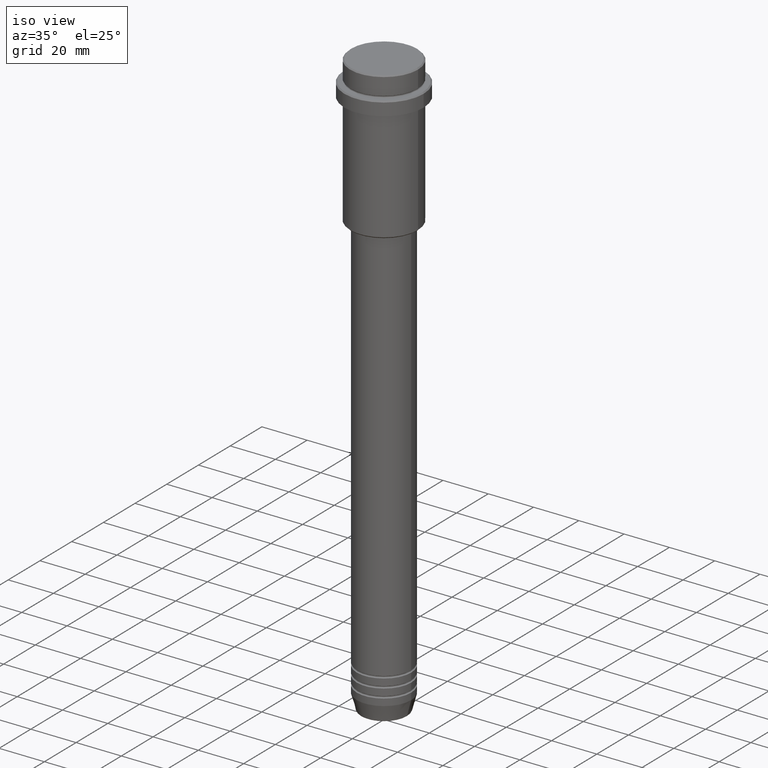
[diagram: clean part render]
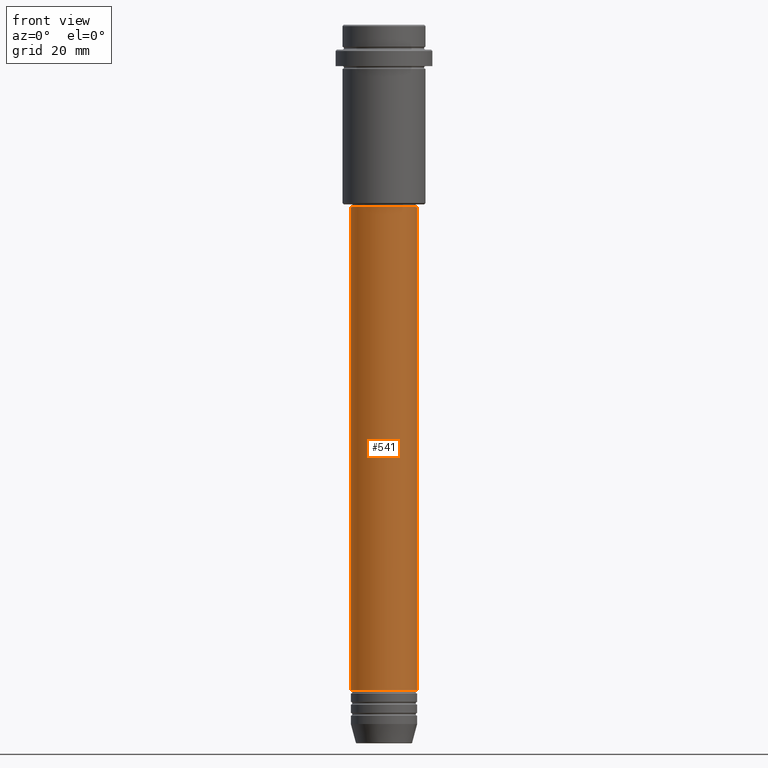
[diagram: tour spotlight — one face highlighted and labeled with its STEP entity id]
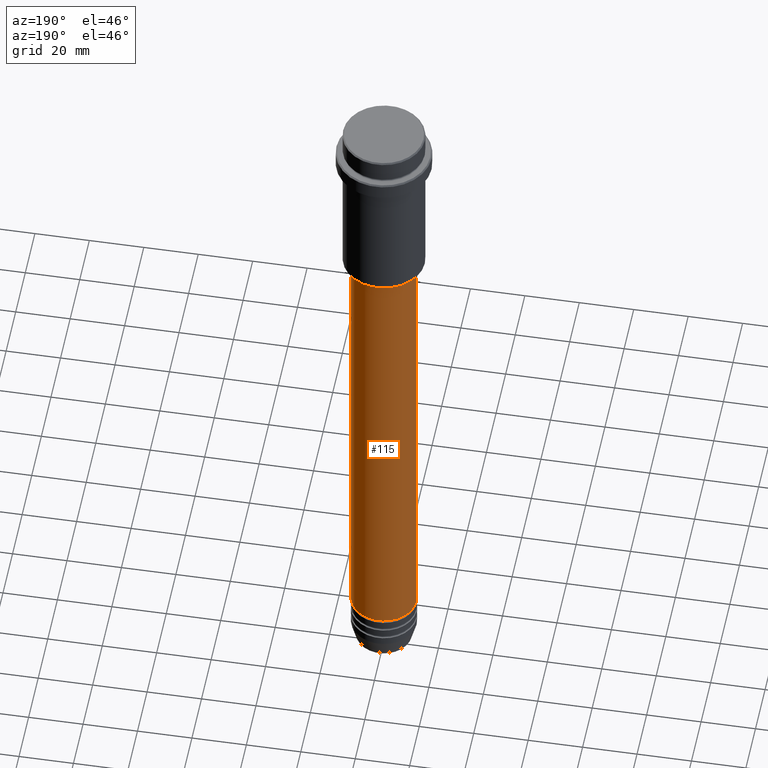
[diagram: tour spotlight — one face highlighted and labeled with its STEP entity id]
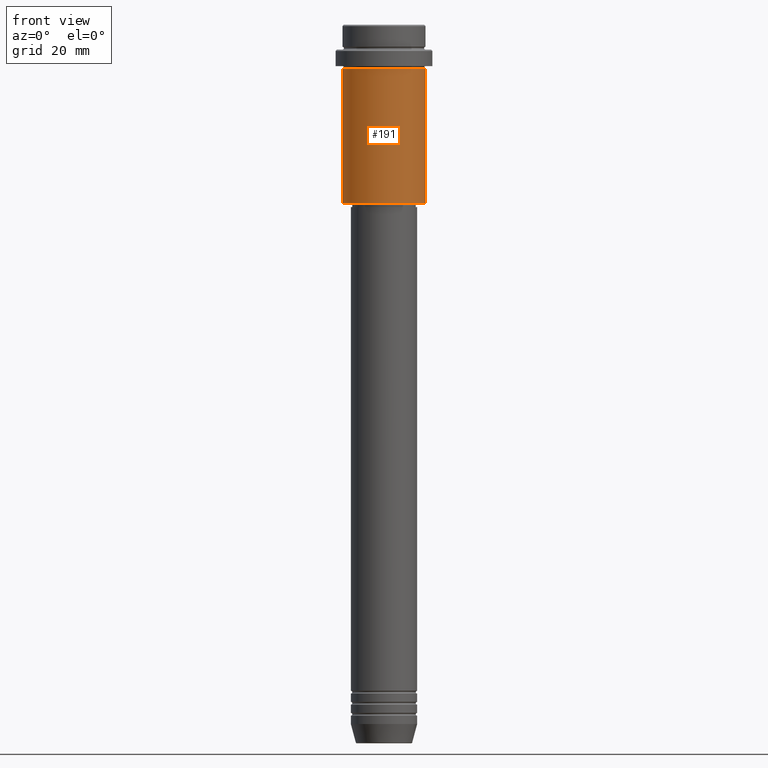
[diagram: tour spotlight — one face highlighted and labeled with its STEP entity id]
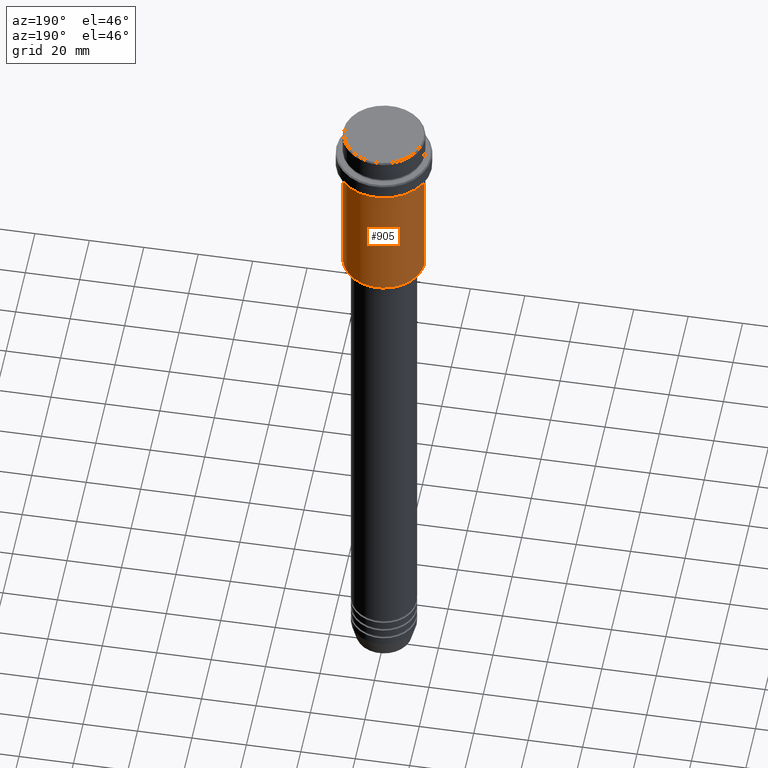
[diagram: tour spotlight — one face highlighted and labeled with its STEP entity id]
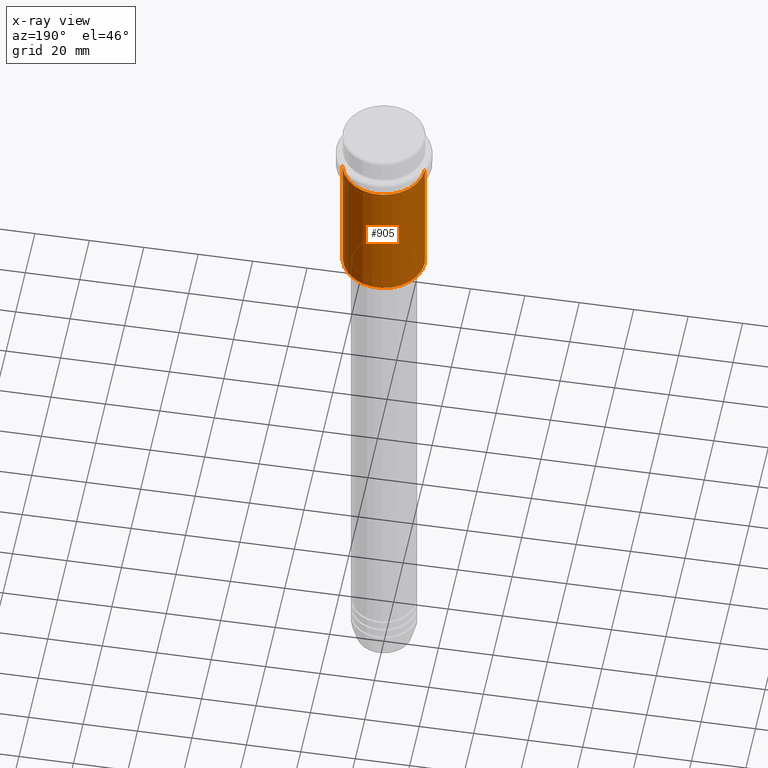
[diagram: x-ray of the same camera — body ghosted, this tour face saturated]
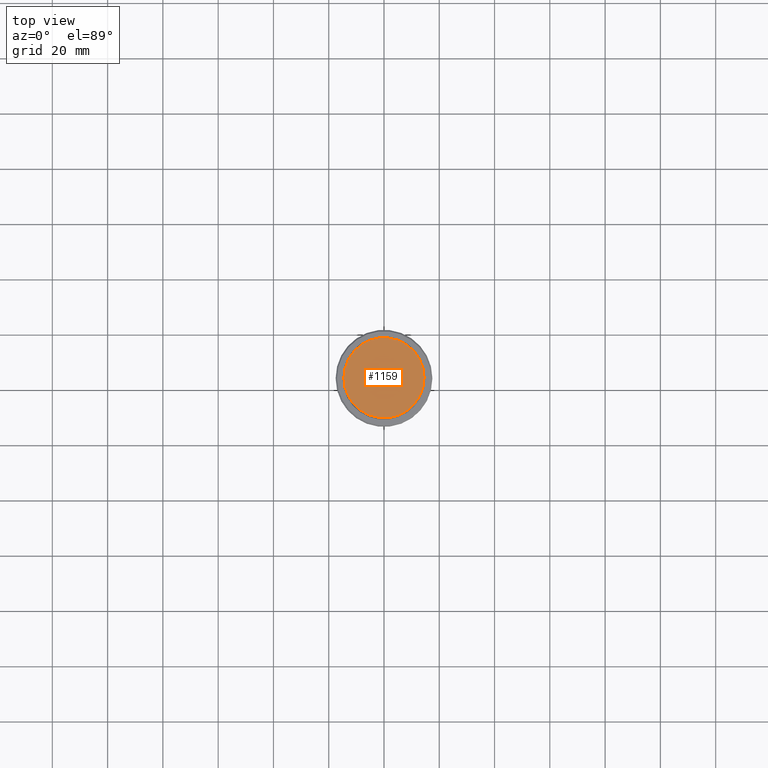
[diagram: tour spotlight — one face highlighted and labeled with its STEP entity id]
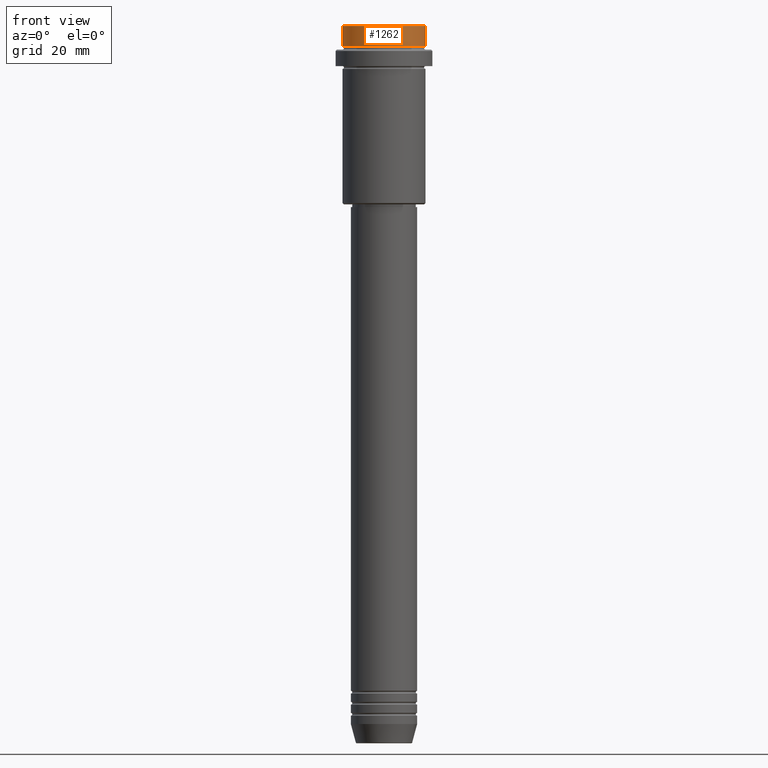
[diagram: tour spotlight — one face highlighted and labeled with its STEP entity id]
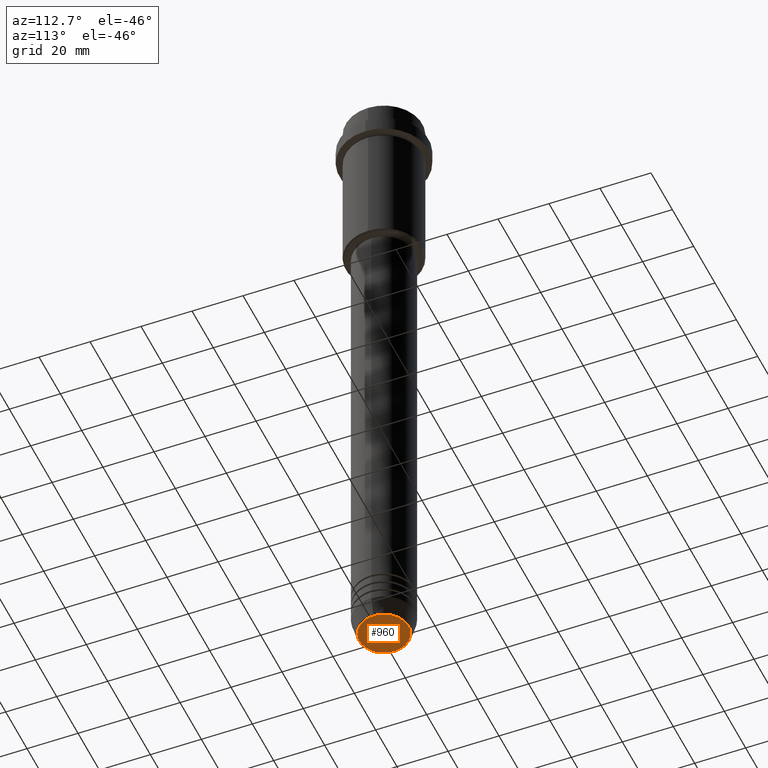
[diagram: tour spotlight — one face highlighted and labeled with its STEP entity id]
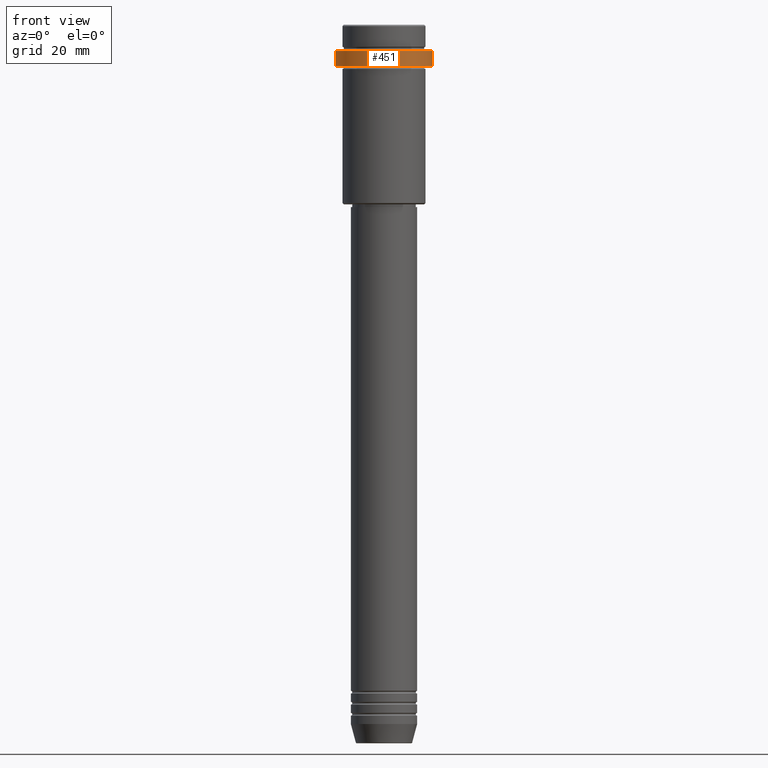
[diagram: tour spotlight — one face highlighted and labeled with its STEP entity id]
A machine part: a face-by-face anatomy tour. The part has 52 B-rep faces; the first image is the clean iso view, then the 8 largest visible faces are spotlighted one at a time (largest first), each with its STEP entity span.

Face 1 — front view, entity #541. In plain terms, the highlighted cylindrical surface (edge-blend (fillet) strip) has radius 12 mm, axis along (-0, -0, 1).
Definition (entity closure, byte-faithful):
#24 = EDGE_CURVE ( 'NONE', #953, #102, #39, .T. ) ;
#39 = CIRCLE ( 'NONE', #1115, 12.00000000000000000 ) ;
#75 = DIRECTION ( 'NONE',  ( -0.000000000000000000, -0.000000000000000000, 1.000000000000000000 ) ) ;
#88 = CIRCLE ( 'NONE', #1161, 11.99999999999999822 ) ;
#102 = VERTEX_POINT ( 'NONE', #418 ) ;
#112 = VECTOR ( 'NONE', #394, 1000.000000000000000 ) ;
#209 = VERTEX_POINT ( 'NONE', #1333 ) ;
#246 = EDGE_LOOP ( 'NONE', ( #1175, #590, #874, #431 ) ) ;
#248 = CARTESIAN_POINT ( 'NONE',  ( 0.000000000000000000, 0.000000000000000000, -66.00000000000000000 ) ) ;
#280 = CARTESIAN_POINT ( 'NONE',  ( -12.00000000000000000, 1.469576158976823947E-15, 0.000000000000000000 ) ) ;
#286 = CYLINDRICAL_SURFACE ( 'NONE', #296, 12.00000000000000000 ) ;
#296 = AXIS2_PLACEMENT_3D ( 'NONE', #1160, #75, #503 ) ;
#323 = CARTESIAN_POINT ( 'NONE',  ( 11.99999999999999822, 0.000000000000000000, -66.00000000000000000 ) ) ;
#324 = EDGE_CURVE ( 'NONE', #102, #1034, #635, .T. ) ;
#394 = DIRECTION ( 'NONE',  ( -0.000000000000000000, -0.000000000000000000, 1.000000000000000000 ) ) ;
#418 = CARTESIAN_POINT ( 'NONE',  ( 12.00000000000000000, 0.000000000000000000, -240.9999999999999147 ) ) ;
#431 = ORIENTED_EDGE ( 'NONE', *, *, #1116, .F. ) ;
#460 = DIRECTION ( 'NONE',  ( -0.000000000000000000, -0.000000000000000000, 1.000000000000000000 ) ) ;
#503 = DIRECTION ( 'NONE',  ( 1.000000000000000000, 0.000000000000000000, 0.000000000000000000 ) ) ;
#517 = DIRECTION ( 'NONE',  ( -0.000000000000000000, -0.000000000000000000, 1.000000000000000000 ) ) ;
#536 = DIRECTION ( 'NONE',  ( -0.000000000000000000, -0.000000000000000000, 1.000000000000000000 ) ) ;
#541 = ADVANCED_FACE ( 'NONE', ( #1192 ), #286, .T. ) ;
#590 = ORIENTED_EDGE ( 'NONE', *, *, #24, .T. ) ;
#635 = LINE ( 'NONE', #1287, #754 ) ;
#673 = DIRECTION ( 'NONE',  ( 1.000000000000000000, 0.000000000000000000, 0.000000000000000000 ) ) ;
#689 = DIRECTION ( 'NONE',  ( 1.000000000000000000, 0.000000000000000000, 0.000000000000000000 ) ) ;
#754 = VECTOR ( 'NONE', #517, 1000.000000000000000 ) ;
#874 = ORIENTED_EDGE ( 'NONE', *, *, #324, .T. ) ;
#944 = LINE ( 'NONE', #280, #112 ) ;
#953 = VERTEX_POINT ( 'NONE', #1249 ) ;
#985 = CARTESIAN_POINT ( 'NONE',  ( 0.000000000000000000, 0.000000000000000000, -240.9999999999999147 ) ) ;
#999 = EDGE_CURVE ( 'NONE', #953, #209, #944, .T. ) ;
#1034 = VERTEX_POINT ( 'NONE', #323 ) ;
#1115 = AXIS2_PLACEMENT_3D ( 'NONE', #985, #536, #673 ) ;
#1116 = EDGE_CURVE ( 'NONE', #209, #1034, #88, .T. ) ;
#1160 = CARTESIAN_POINT ( 'NONE',  ( 0.000000000000000000, 0.000000000000000000, 0.000000000000000000 ) ) ;
#1161 = AXIS2_PLACEMENT_3D ( 'NONE', #248, #460, #689 ) ;
#1175 = ORIENTED_EDGE ( 'NONE', *, *, #999, .F. ) ;
#1192 = FACE_OUTER_BOUND ( 'NONE', #246, .T. ) ;
#1249 = CARTESIAN_POINT ( 'NONE',  ( -12.00000000000000000, 1.469576158976823947E-15, -240.9999999999999147 ) ) ;
#1287 = CARTESIAN_POINT ( 'NONE',  ( 12.00000000000000000, 0.000000000000000000, 0.000000000000000000 ) ) ;
#1333 = CARTESIAN_POINT ( 'NONE',  ( -11.99999999999999822, 1.469576158976823750E-15, -66.00000000000000000 ) ) ;

Face 2 — auxiliary view, entity #115. In plain terms, the highlighted cylindrical surface (edge-blend (fillet) strip) has radius 12 mm, axis along (-0, -0, 1).
Definition (entity closure, byte-faithful):
#102 = VERTEX_POINT ( 'NONE', #418 ) ;
#112 = VECTOR ( 'NONE', #394, 1000.000000000000000 ) ;
#115 = ADVANCED_FACE ( 'NONE', ( #861 ), #1194, .T. ) ;
#209 = VERTEX_POINT ( 'NONE', #1333 ) ;
#221 = DIRECTION ( 'NONE',  ( 1.000000000000000000, 0.000000000000000000, 0.000000000000000000 ) ) ;
#280 = CARTESIAN_POINT ( 'NONE',  ( -12.00000000000000000, 1.469576158976823947E-15, 0.000000000000000000 ) ) ;
#323 = CARTESIAN_POINT ( 'NONE',  ( 11.99999999999999822, 0.000000000000000000, -66.00000000000000000 ) ) ;
#324 = EDGE_CURVE ( 'NONE', #102, #1034, #635, .T. ) ;
#360 = EDGE_LOOP ( 'NONE', ( #461, #1389, #1290, #708 ) ) ;
#394 = DIRECTION ( 'NONE',  ( -0.000000000000000000, -0.000000000000000000, 1.000000000000000000 ) ) ;
#418 = CARTESIAN_POINT ( 'NONE',  ( 12.00000000000000000, 0.000000000000000000, -240.9999999999999147 ) ) ;
#461 = ORIENTED_EDGE ( 'NONE', *, *, #1053, .T. ) ;
#463 = AXIS2_PLACEMENT_3D ( 'NONE', #1124, #1376, #1173 ) ;
#517 = DIRECTION ( 'NONE',  ( -0.000000000000000000, -0.000000000000000000, 1.000000000000000000 ) ) ;
#552 = CARTESIAN_POINT ( 'NONE',  ( 0.000000000000000000, 0.000000000000000000, 0.000000000000000000 ) ) ;
#616 = AXIS2_PLACEMENT_3D ( 'NONE', #552, #1100, #221 ) ;
#635 = LINE ( 'NONE', #1287, #754 ) ;
#640 = DIRECTION ( 'NONE',  ( 1.000000000000000000, 0.000000000000000000, 0.000000000000000000 ) ) ;
#708 = ORIENTED_EDGE ( 'NONE', *, *, #324, .F. ) ;
#754 = VECTOR ( 'NONE', #517, 1000.000000000000000 ) ;
#812 = EDGE_CURVE ( 'NONE', #1034, #209, #1391, .T. ) ;
#861 = FACE_OUTER_BOUND ( 'NONE', #360, .T. ) ;
#944 = LINE ( 'NONE', #280, #112 ) ;
#953 = VERTEX_POINT ( 'NONE', #1249 ) ;
#999 = EDGE_CURVE ( 'NONE', #953, #209, #944, .T. ) ;
#1034 = VERTEX_POINT ( 'NONE', #323 ) ;
#1053 = EDGE_CURVE ( 'NONE', #102, #953, #1223, .T. ) ;
#1100 = DIRECTION ( 'NONE',  ( -0.000000000000000000, -0.000000000000000000, 1.000000000000000000 ) ) ;
#1122 = DIRECTION ( 'NONE',  ( -0.000000000000000000, -0.000000000000000000, 1.000000000000000000 ) ) ;
#1124 = CARTESIAN_POINT ( 'NONE',  ( 0.000000000000000000, 0.000000000000000000, -66.00000000000000000 ) ) ;
#1143 = AXIS2_PLACEMENT_3D ( 'NONE', #1240, #1122, #640 ) ;
#1173 = DIRECTION ( 'NONE',  ( 1.000000000000000000, 0.000000000000000000, 0.000000000000000000 ) ) ;
#1194 = CYLINDRICAL_SURFACE ( 'NONE', #616, 12.00000000000000000 ) ;
#1223 = CIRCLE ( 'NONE', #1143, 12.00000000000000000 ) ;
#1240 = CARTESIAN_POINT ( 'NONE',  ( 0.000000000000000000, 0.000000000000000000, -240.9999999999999147 ) ) ;
#1249 = CARTESIAN_POINT ( 'NONE',  ( -12.00000000000000000, 1.469576158976823947E-15, -240.9999999999999147 ) ) ;
#1287 = CARTESIAN_POINT ( 'NONE',  ( 12.00000000000000000, 0.000000000000000000, 0.000000000000000000 ) ) ;
#1290 = ORIENTED_EDGE ( 'NONE', *, *, #812, .F. ) ;
#1333 = CARTESIAN_POINT ( 'NONE',  ( -11.99999999999999822, 1.469576158976823750E-15, -66.00000000000000000 ) ) ;
#1376 = DIRECTION ( 'NONE',  ( -0.000000000000000000, -0.000000000000000000, 1.000000000000000000 ) ) ;
#1389 = ORIENTED_EDGE ( 'NONE', *, *, #999, .T. ) ;
#1391 = CIRCLE ( 'NONE', #463, 11.99999999999999822 ) ;

Face 3 — front view, entity #191. In plain terms, the highlighted cylindrical surface (partial cylindrical patch) has radius 15 mm, axis along (-0, -0, 1).
Definition (entity closure, byte-faithful):
#69 = EDGE_CURVE ( 'NONE', #794, #1026, #1187, .T. ) ;
#110 = ORIENTED_EDGE ( 'NONE', *, *, #410, .F. ) ;
#165 = AXIS2_PLACEMENT_3D ( 'NONE', #1138, #887, #1109 ) ;
#182 = DIRECTION ( 'NONE',  ( -0.000000000000000000, -0.000000000000000000, 1.000000000000000000 ) ) ;
#191 = ADVANCED_FACE ( 'NONE', ( #275 ), #1054, .T. ) ;
#199 = LINE ( 'NONE', #630, #1274 ) ;
#275 = FACE_OUTER_BOUND ( 'NONE', #679, .T. ) ;
#283 = ORIENTED_EDGE ( 'NONE', *, *, #1308, .T. ) ;
#369 = CARTESIAN_POINT ( 'NONE',  ( 15.00000000000000000, 0.000000000000000000, 0.000000000000000000 ) ) ;
#370 = VERTEX_POINT ( 'NONE', #738 ) ;
#384 = CARTESIAN_POINT ( 'NONE',  ( -15.00000000000000000, 1.836970198721029589E-15, -64.49999999999995737 ) ) ;
#393 = DIRECTION ( 'NONE',  ( 1.000000000000000000, 0.000000000000000000, 0.000000000000000000 ) ) ;
#406 = CARTESIAN_POINT ( 'NONE',  ( 0.000000000000000000, 0.000000000000000000, 0.000000000000000000 ) ) ;
#410 = EDGE_CURVE ( 'NONE', #794, #922, #199, .T. ) ;
#444 = DIRECTION ( 'NONE',  ( -1.000000000000000000, 0.000000000000000000, 0.000000000000000000 ) ) ;
#475 = DIRECTION ( 'NONE',  ( -0.000000000000000000, -0.000000000000000000, 1.000000000000000000 ) ) ;
#511 = ORIENTED_EDGE ( 'NONE', *, *, #69, .T. ) ;
#618 = VECTOR ( 'NONE', #1033, 1000.000000000000000 ) ;
#622 = ORIENTED_EDGE ( 'NONE', *, *, #1252, .F. ) ;
#630 = CARTESIAN_POINT ( 'NONE',  ( -15.00000000000000000, 1.836970198721029589E-15, 0.000000000000000000 ) ) ;
#679 = EDGE_LOOP ( 'NONE', ( #110, #511, #283, #622 ) ) ;
#707 = CARTESIAN_POINT ( 'NONE',  ( 0.000000000000000000, 0.000000000000000000, -64.49999999999995737 ) ) ;
#738 = CARTESIAN_POINT ( 'NONE',  ( 15.00000000000000178, 0.000000000000000000, -16.00000000000000000 ) ) ;
#794 = VERTEX_POINT ( 'NONE', #384 ) ;
#821 = AXIS2_PLACEMENT_3D ( 'NONE', #406, #182, #393 ) ;
#887 = DIRECTION ( 'NONE',  ( -0.000000000000000000, -0.000000000000000000, 1.000000000000000000 ) ) ;
#922 = VERTEX_POINT ( 'NONE', #1220 ) ;
#923 = LINE ( 'NONE', #369, #618 ) ;
#932 = CIRCLE ( 'NONE', #165, 15.00000000000000178 ) ;
#1026 = VERTEX_POINT ( 'NONE', #1307 ) ;
#1033 = DIRECTION ( 'NONE',  ( -0.000000000000000000, -0.000000000000000000, 1.000000000000000000 ) ) ;
#1054 = CYLINDRICAL_SURFACE ( 'NONE', #821, 15.00000000000000000 ) ;
#1058 = DIRECTION ( 'NONE',  ( -0.000000000000000000, -0.000000000000000000, 1.000000000000000000 ) ) ;
#1109 = DIRECTION ( 'NONE',  ( 1.000000000000000000, 0.000000000000000000, 0.000000000000000000 ) ) ;
#1138 = CARTESIAN_POINT ( 'NONE',  ( 0.000000000000000000, 0.000000000000000000, -16.00000000000000000 ) ) ;
#1144 = AXIS2_PLACEMENT_3D ( 'NONE', #707, #475, #444 ) ;
#1187 = CIRCLE ( 'NONE', #1144, 15.00000000000000000 ) ;
#1220 = CARTESIAN_POINT ( 'NONE',  ( -15.00000000000000355, 1.836970198721029983E-15, -16.00000000000000000 ) ) ;
#1252 = EDGE_CURVE ( 'NONE', #922, #370, #932, .T. ) ;
#1274 = VECTOR ( 'NONE', #1058, 1000.000000000000000 ) ;
#1307 = CARTESIAN_POINT ( 'NONE',  ( 15.00000000000000000, 0.000000000000000000, -64.49999999999995737 ) ) ;
#1308 = EDGE_CURVE ( 'NONE', #1026, #370, #923, .T. ) ;

Face 4 — auxiliary view, entity #905. An x-ray twin of the same camera follows (body ghosted, this face saturated) — the face is partly hidden behind the body. In plain terms, the highlighted cylindrical surface (partial cylindrical patch) has radius 15 mm, axis along (-0, -0, 1).
Definition (entity closure, byte-faithful):
#27 = ORIENTED_EDGE ( 'NONE', *, *, #1308, .F. ) ;
#82 = DIRECTION ( 'NONE',  ( 1.000000000000000000, 0.000000000000000000, 0.000000000000000000 ) ) ;
#199 = LINE ( 'NONE', #630, #1274 ) ;
#205 = CYLINDRICAL_SURFACE ( 'NONE', #1167, 15.00000000000000000 ) ;
#229 = CIRCLE ( 'NONE', #405, 15.00000000000000000 ) ;
#270 = DIRECTION ( 'NONE',  ( -0.000000000000000000, -0.000000000000000000, 1.000000000000000000 ) ) ;
#295 = CIRCLE ( 'NONE', #703, 15.00000000000000178 ) ;
#307 = FACE_OUTER_BOUND ( 'NONE', #501, .T. ) ;
#369 = CARTESIAN_POINT ( 'NONE',  ( 15.00000000000000000, 0.000000000000000000, 0.000000000000000000 ) ) ;
#370 = VERTEX_POINT ( 'NONE', #738 ) ;
#384 = CARTESIAN_POINT ( 'NONE',  ( -15.00000000000000000, 1.836970198721029589E-15, -64.49999999999995737 ) ) ;
#388 = DIRECTION ( 'NONE',  ( 1.000000000000000000, 0.000000000000000000, 0.000000000000000000 ) ) ;
#405 = AXIS2_PLACEMENT_3D ( 'NONE', #562, #994, #893 ) ;
#410 = EDGE_CURVE ( 'NONE', #794, #922, #199, .T. ) ;
#478 = ORIENTED_EDGE ( 'NONE', *, *, #410, .T. ) ;
#501 = EDGE_LOOP ( 'NONE', ( #1195, #478, #515, #27 ) ) ;
#515 = ORIENTED_EDGE ( 'NONE', *, *, #1341, .F. ) ;
#562 = CARTESIAN_POINT ( 'NONE',  ( 0.000000000000000000, 0.000000000000000000, -64.49999999999995737 ) ) ;
#581 = EDGE_CURVE ( 'NONE', #1026, #794, #229, .T. ) ;
#618 = VECTOR ( 'NONE', #1033, 1000.000000000000000 ) ;
#630 = CARTESIAN_POINT ( 'NONE',  ( -15.00000000000000000, 1.836970198721029589E-15, 0.000000000000000000 ) ) ;
#637 = DIRECTION ( 'NONE',  ( -0.000000000000000000, -0.000000000000000000, 1.000000000000000000 ) ) ;
#703 = AXIS2_PLACEMENT_3D ( 'NONE', #817, #270, #388 ) ;
#738 = CARTESIAN_POINT ( 'NONE',  ( 15.00000000000000178, 0.000000000000000000, -16.00000000000000000 ) ) ;
#794 = VERTEX_POINT ( 'NONE', #384 ) ;
#817 = CARTESIAN_POINT ( 'NONE',  ( 0.000000000000000000, 0.000000000000000000, -16.00000000000000000 ) ) ;
#893 = DIRECTION ( 'NONE',  ( -1.000000000000000000, 0.000000000000000000, 0.000000000000000000 ) ) ;
#905 = ADVANCED_FACE ( 'NONE', ( #307 ), #205, .T. ) ;
#922 = VERTEX_POINT ( 'NONE', #1220 ) ;
#923 = LINE ( 'NONE', #369, #618 ) ;
#994 = DIRECTION ( 'NONE',  ( -0.000000000000000000, -0.000000000000000000, 1.000000000000000000 ) ) ;
#1026 = VERTEX_POINT ( 'NONE', #1307 ) ;
#1033 = DIRECTION ( 'NONE',  ( -0.000000000000000000, -0.000000000000000000, 1.000000000000000000 ) ) ;
#1058 = DIRECTION ( 'NONE',  ( -0.000000000000000000, -0.000000000000000000, 1.000000000000000000 ) ) ;
#1167 = AXIS2_PLACEMENT_3D ( 'NONE', #1305, #637, #82 ) ;
#1195 = ORIENTED_EDGE ( 'NONE', *, *, #581, .T. ) ;
#1220 = CARTESIAN_POINT ( 'NONE',  ( -15.00000000000000355, 1.836970198721029983E-15, -16.00000000000000000 ) ) ;
#1274 = VECTOR ( 'NONE', #1058, 1000.000000000000000 ) ;
#1305 = CARTESIAN_POINT ( 'NONE',  ( 0.000000000000000000, 0.000000000000000000, 0.000000000000000000 ) ) ;
#1307 = CARTESIAN_POINT ( 'NONE',  ( 15.00000000000000000, 0.000000000000000000, -64.49999999999995737 ) ) ;
#1308 = EDGE_CURVE ( 'NONE', #1026, #370, #923, .T. ) ;
#1341 = EDGE_CURVE ( 'NONE', #370, #922, #295, .T. ) ;

Face 5 — top view, entity #1159. In plain terms, the highlighted planar face has unit normal (0, -0, 1).
Definition (entity closure, byte-faithful):
#118 = CIRCLE ( 'NONE', #709, 14.49999999999998401 ) ;
#130 = DIRECTION ( 'NONE',  ( 1.000000000000000000, 0.000000000000000000, 0.000000000000000000 ) ) ;
#131 = DIRECTION ( 'NONE',  ( 1.000000000000000000, 0.000000000000000000, 0.000000000000000000 ) ) ;
#142 = FACE_OUTER_BOUND ( 'NONE', #711, .T. ) ;
#147 = VERTEX_POINT ( 'NONE', #1105 ) ;
#349 = PLANE ( 'NONE',  #374 ) ;
#374 = AXIS2_PLACEMENT_3D ( 'NONE', #585, #1213, #130 ) ;
#426 = CIRCLE ( 'NONE', #1269, 14.49999999999998401 ) ;
#545 = CARTESIAN_POINT ( 'NONE',  ( 0.000000000000000000, 0.000000000000000000, 0.000000000000000000 ) ) ;
#585 = CARTESIAN_POINT ( 'NONE',  ( 0.000000000000000000, 0.000000000000000000, 0.000000000000000000 ) ) ;
#612 = EDGE_CURVE ( 'NONE', #1278, #147, #118, .T. ) ;
#709 = AXIS2_PLACEMENT_3D ( 'NONE', #913, #1136, #815 ) ;
#711 = EDGE_LOOP ( 'NONE', ( #1060, #866 ) ) ;
#718 = EDGE_CURVE ( 'NONE', #147, #1278, #426, .T. ) ;
#815 = DIRECTION ( 'NONE',  ( 1.000000000000000000, 0.000000000000000000, 0.000000000000000000 ) ) ;
#866 = ORIENTED_EDGE ( 'NONE', *, *, #612, .T. ) ;
#913 = CARTESIAN_POINT ( 'NONE',  ( 0.000000000000000000, 0.000000000000000000, 0.000000000000000000 ) ) ;
#1060 = ORIENTED_EDGE ( 'NONE', *, *, #718, .T. ) ;
#1105 = CARTESIAN_POINT ( 'NONE',  ( -14.49999999999998401, 0.000000000000000000, 0.000000000000000000 ) ) ;
#1110 = DIRECTION ( 'NONE',  ( -0.000000000000000000, -0.000000000000000000, 1.000000000000000000 ) ) ;
#1136 = DIRECTION ( 'NONE',  ( -0.000000000000000000, -0.000000000000000000, 1.000000000000000000 ) ) ;
#1154 = CARTESIAN_POINT ( 'NONE',  ( 14.49999999999998401, 1.806354028742345013E-15, 0.000000000000000000 ) ) ;
#1159 = ADVANCED_FACE ( 'NONE', ( #142 ), #349, .T. ) ;
#1213 = DIRECTION ( 'NONE',  ( 0.000000000000000000, -0.000000000000000000, 1.000000000000000000 ) ) ;
#1269 = AXIS2_PLACEMENT_3D ( 'NONE', #545, #1110, #131 ) ;
#1278 = VERTEX_POINT ( 'NONE', #1154 ) ;

Face 6 — front view, entity #1262. In plain terms, the highlighted cylindrical surface (partial cylindrical patch) has radius 15 mm, axis along (-0, -0, 1).
Definition (entity closure, byte-faithful):
#65 = LINE ( 'NONE', #496, #192 ) ;
#81 = VERTEX_POINT ( 'NONE', #1085 ) ;
#145 = LINE ( 'NONE', #483, #997 ) ;
#192 = VECTOR ( 'NONE', #1375, 1000.000000000000000 ) ;
#195 = DIRECTION ( 'NONE',  ( -0.000000000000000000, -0.000000000000000000, 1.000000000000000000 ) ) ;
#233 = AXIS2_PLACEMENT_3D ( 'NONE', #447, #1332, #346 ) ;
#234 = AXIS2_PLACEMENT_3D ( 'NONE', #1052, #392, #965 ) ;
#249 = VERTEX_POINT ( 'NONE', #1035 ) ;
#308 = EDGE_CURVE ( 'NONE', #81, #249, #934, .T. ) ;
#346 = DIRECTION ( 'NONE',  ( 1.000000000000000000, 0.000000000000000000, 0.000000000000000000 ) ) ;
#385 = CARTESIAN_POINT ( 'NONE',  ( 0.000000000000000000, 0.000000000000000000, -0.5000000000000108802 ) ) ;
#392 = DIRECTION ( 'NONE',  ( -0.000000000000000000, -0.000000000000000000, 1.000000000000000000 ) ) ;
#447 = CARTESIAN_POINT ( 'NONE',  ( 0.000000000000000000, 0.000000000000000000, 0.000000000000000000 ) ) ;
#483 = CARTESIAN_POINT ( 'NONE',  ( -15.00000000000000000, 1.836970198721029589E-15, 0.000000000000000000 ) ) ;
#496 = CARTESIAN_POINT ( 'NONE',  ( 15.00000000000000000, 0.000000000000000000, 0.000000000000000000 ) ) ;
#498 = ORIENTED_EDGE ( 'NONE', *, *, #308, .T. ) ;
#513 = EDGE_CURVE ( 'NONE', #1398, #791, #1248, .T. ) ;
#525 = CARTESIAN_POINT ( 'NONE',  ( 15.00000000000000000, 0.000000000000000000, -7.999999999999998224 ) ) ;
#565 = FACE_OUTER_BOUND ( 'NONE', #1337, .T. ) ;
#643 = DIRECTION ( 'NONE',  ( 0.000000000000000000, 0.000000000000000000, -1.000000000000000000 ) ) ;
#684 = AXIS2_PLACEMENT_3D ( 'NONE', #385, #643, #848 ) ;
#791 = VERTEX_POINT ( 'NONE', #525 ) ;
#808 = ORIENTED_EDGE ( 'NONE', *, *, #876, .T. ) ;
#846 = ORIENTED_EDGE ( 'NONE', *, *, #513, .T. ) ;
#848 = DIRECTION ( 'NONE',  ( 1.000000000000000000, 0.000000000000000000, 0.000000000000000000 ) ) ;
#876 = EDGE_CURVE ( 'NONE', #791, #81, #65, .T. ) ;
#929 = EDGE_CURVE ( 'NONE', #1398, #249, #145, .T. ) ;
#934 = CIRCLE ( 'NONE', #684, 15.00000000000000000 ) ;
#965 = DIRECTION ( 'NONE',  ( 1.000000000000000000, 0.000000000000000000, 0.000000000000000000 ) ) ;
#997 = VECTOR ( 'NONE', #195, 1000.000000000000000 ) ;
#998 = CYLINDRICAL_SURFACE ( 'NONE', #233, 15.00000000000000000 ) ;
#1035 = CARTESIAN_POINT ( 'NONE',  ( -15.00000000000000000, 1.836970198721029589E-15, -0.5000000000000108802 ) ) ;
#1043 = CARTESIAN_POINT ( 'NONE',  ( -15.00000000000000000, 1.836970198721029589E-15, -7.999999999999998224 ) ) ;
#1052 = CARTESIAN_POINT ( 'NONE',  ( 0.000000000000000000, 0.000000000000000000, -7.999999999999998224 ) ) ;
#1085 = CARTESIAN_POINT ( 'NONE',  ( 15.00000000000000000, 0.000000000000000000, -0.5000000000000108802 ) ) ;
#1248 = CIRCLE ( 'NONE', #234, 15.00000000000000000 ) ;
#1258 = ORIENTED_EDGE ( 'NONE', *, *, #929, .F. ) ;
#1262 = ADVANCED_FACE ( 'NONE', ( #565 ), #998, .T. ) ;
#1332 = DIRECTION ( 'NONE',  ( -0.000000000000000000, -0.000000000000000000, 1.000000000000000000 ) ) ;
#1337 = EDGE_LOOP ( 'NONE', ( #1258, #846, #808, #498 ) ) ;
#1375 = DIRECTION ( 'NONE',  ( -0.000000000000000000, -0.000000000000000000, 1.000000000000000000 ) ) ;
#1398 = VERTEX_POINT ( 'NONE', #1043 ) ;

Face 7 — auxiliary view, entity #960. In plain terms, the highlighted planar face has unit normal (0, -0, 1).
Definition (entity closure, byte-faithful):
#26 = CARTESIAN_POINT ( 'NONE',  ( 0.000000000000000000, 0.000000000000000000, -260.0000000000000000 ) ) ;
#85 = CARTESIAN_POINT ( 'NONE',  ( 9.740692158992658278, 0.000000000000000000, -260.0000000000000000 ) ) ;
#105 = ORIENTED_EDGE ( 'NONE', *, *, #424, .T. ) ;
#163 = DIRECTION ( 'NONE',  ( 1.000000000000000000, 0.000000000000000000, 0.000000000000000000 ) ) ;
#175 = FACE_OUTER_BOUND ( 'NONE', #258, .T. ) ;
#193 = DIRECTION ( 'NONE',  ( 0.000000000000000000, -0.000000000000000000, 1.000000000000000000 ) ) ;
#258 = EDGE_LOOP ( 'NONE', ( #1276, #105 ) ) ;
#309 = VERTEX_POINT ( 'NONE', #85 ) ;
#357 = VERTEX_POINT ( 'NONE', #745 ) ;
#362 = CARTESIAN_POINT ( 'NONE',  ( 0.000000000000000000, 0.000000000000000000, -260.0000000000000000 ) ) ;
#424 = EDGE_CURVE ( 'NONE', #357, #309, #467, .T. ) ;
#467 = CIRCLE ( 'NONE', #954, 9.740692158992658278 ) ;
#702 = AXIS2_PLACEMENT_3D ( 'NONE', #1163, #193, #1393 ) ;
#745 = CARTESIAN_POINT ( 'NONE',  ( -9.740692158992658278, 1.222463696683474999E-15, -260.0000000000000000 ) ) ;
#784 = EDGE_CURVE ( 'NONE', #309, #357, #1327, .T. ) ;
#884 = DIRECTION ( 'NONE',  ( 1.000000000000000000, 0.000000000000000000, 0.000000000000000000 ) ) ;
#954 = AXIS2_PLACEMENT_3D ( 'NONE', #26, #995, #884 ) ;
#960 = ADVANCED_FACE ( 'NONE', ( #175 ), #1038, .F. ) ;
#995 = DIRECTION ( 'NONE',  ( 0.000000000000000000, 0.000000000000000000, -1.000000000000000000 ) ) ;
#1038 = PLANE ( 'NONE',  #702 ) ;
#1163 = CARTESIAN_POINT ( 'NONE',  ( 0.000000000000000000, 0.000000000000000000, -260.0000000000000000 ) ) ;
#1237 = DIRECTION ( 'NONE',  ( 0.000000000000000000, 0.000000000000000000, -1.000000000000000000 ) ) ;
#1275 = AXIS2_PLACEMENT_3D ( 'NONE', #362, #1237, #163 ) ;
#1276 = ORIENTED_EDGE ( 'NONE', *, *, #784, .T. ) ;
#1327 = CIRCLE ( 'NONE', #1275, 9.740692158992658278 ) ;
#1393 = DIRECTION ( 'NONE',  ( 1.000000000000000000, 0.000000000000000000, 0.000000000000000000 ) ) ;

Face 8 — front view, entity #451. In plain terms, the highlighted cylindrical surface (partial cylindrical patch) has radius 17.5 mm, axis along (-0, -0, 1).
Definition (entity closure, byte-faithful):
#4 = DIRECTION ( 'NONE',  ( 1.000000000000000000, 0.000000000000000000, 0.000000000000000000 ) ) ;
#67 = CIRCLE ( 'NONE', #868, 17.50000000000000000 ) ;
#68 = VECTOR ( 'NONE', #870, 1000.000000000000000 ) ;
#94 = VECTOR ( 'NONE', #219, 1000.000000000000000 ) ;
#100 = LINE ( 'NONE', #654, #68 ) ;
#219 = DIRECTION ( 'NONE',  ( -0.000000000000000000, -0.000000000000000000, 1.000000000000000000 ) ) ;
#364 = EDGE_CURVE ( 'NONE', #1378, #921, #1063, .T. ) ;
#371 = CARTESIAN_POINT ( 'NONE',  ( 0.000000000000000000, 0.000000000000000000, -15.00000000000000178 ) ) ;
#451 = ADVANCED_FACE ( 'NONE', ( #979 ), #1088, .T. ) ;
#488 = CIRCLE ( 'NONE', #1416, 17.50000000000000000 ) ;
#526 = ORIENTED_EDGE ( 'NONE', *, *, #674, .T. ) ;
#551 = EDGE_CURVE ( 'NONE', #914, #921, #67, .T. ) ;
#619 = AXIS2_PLACEMENT_3D ( 'NONE', #894, #1330, #4 ) ;
#636 = ORIENTED_EDGE ( 'NONE', *, *, #966, .T. ) ;
#639 = EDGE_LOOP ( 'NONE', ( #699, #636, #526, #1200 ) ) ;
#654 = CARTESIAN_POINT ( 'NONE',  ( 17.50000000000000000, 0.000000000000000000, 0.000000000000000000 ) ) ;
#674 = EDGE_CURVE ( 'NONE', #909, #914, #100, .T. ) ;
#699 = ORIENTED_EDGE ( 'NONE', *, *, #364, .F. ) ;
#719 = CARTESIAN_POINT ( 'NONE',  ( 0.000000000000000000, 0.000000000000000000, -9.500000000000001776 ) ) ;
#751 = CARTESIAN_POINT ( 'NONE',  ( -17.50000000000000000, 2.143131898507868248E-15, 0.000000000000000000 ) ) ;
#792 = DIRECTION ( 'NONE',  ( -0.000000000000000000, -0.000000000000000000, 1.000000000000000000 ) ) ;
#844 = CARTESIAN_POINT ( 'NONE',  ( 17.50000000000000000, 0.000000000000000000, -15.00000000000000178 ) ) ;
#868 = AXIS2_PLACEMENT_3D ( 'NONE', #719, #1044, #1339 ) ;
#870 = DIRECTION ( 'NONE',  ( -0.000000000000000000, -0.000000000000000000, 1.000000000000000000 ) ) ;
#894 = CARTESIAN_POINT ( 'NONE',  ( 0.000000000000000000, 0.000000000000000000, 0.000000000000000000 ) ) ;
#909 = VERTEX_POINT ( 'NONE', #844 ) ;
#914 = VERTEX_POINT ( 'NONE', #1101 ) ;
#921 = VERTEX_POINT ( 'NONE', #1335 ) ;
#966 = EDGE_CURVE ( 'NONE', #1378, #909, #488, .T. ) ;
#979 = FACE_OUTER_BOUND ( 'NONE', #639, .T. ) ;
#1044 = DIRECTION ( 'NONE',  ( 0.000000000000000000, 0.000000000000000000, -1.000000000000000000 ) ) ;
#1063 = LINE ( 'NONE', #751, #94 ) ;
#1088 = CYLINDRICAL_SURFACE ( 'NONE', #619, 17.50000000000000000 ) ;
#1101 = CARTESIAN_POINT ( 'NONE',  ( 17.50000000000000000, 0.000000000000000000, -9.500000000000001776 ) ) ;
#1169 = CARTESIAN_POINT ( 'NONE',  ( -17.50000000000000000, 2.143131898507868248E-15, -15.00000000000000178 ) ) ;
#1200 = ORIENTED_EDGE ( 'NONE', *, *, #551, .T. ) ;
#1215 = DIRECTION ( 'NONE',  ( 1.000000000000000000, 0.000000000000000000, 0.000000000000000000 ) ) ;
#1330 = DIRECTION ( 'NONE',  ( -0.000000000000000000, -0.000000000000000000, 1.000000000000000000 ) ) ;
#1335 = CARTESIAN_POINT ( 'NONE',  ( -17.50000000000000000, 2.143131898507868248E-15, -9.500000000000001776 ) ) ;
#1339 = DIRECTION ( 'NONE',  ( 1.000000000000000000, 0.000000000000000000, 0.000000000000000000 ) ) ;
#1378 = VERTEX_POINT ( 'NONE', #1169 ) ;
#1416 = AXIS2_PLACEMENT_3D ( 'NONE', #371, #792, #1215 ) ;